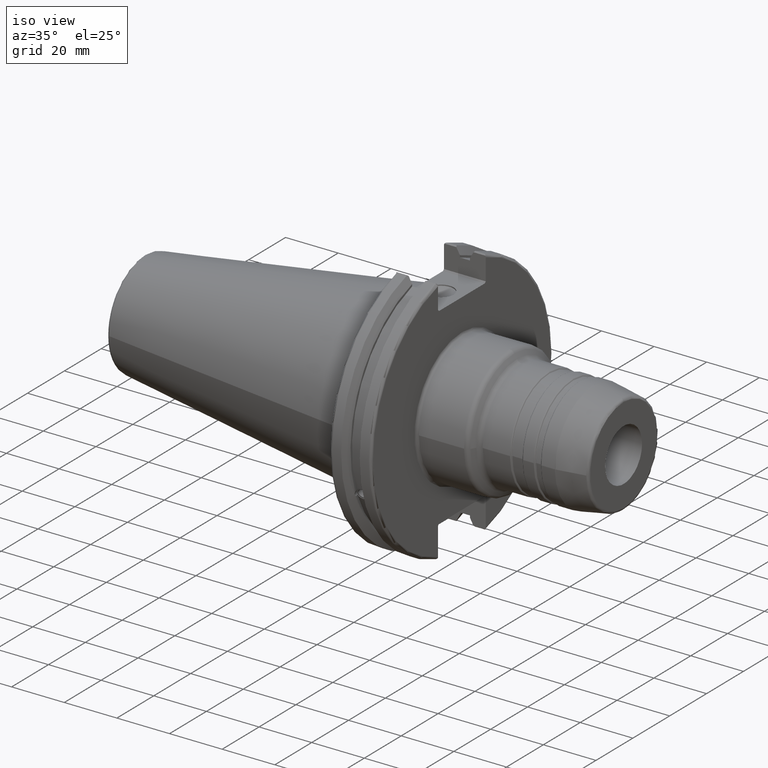
[diagram: clean part render]
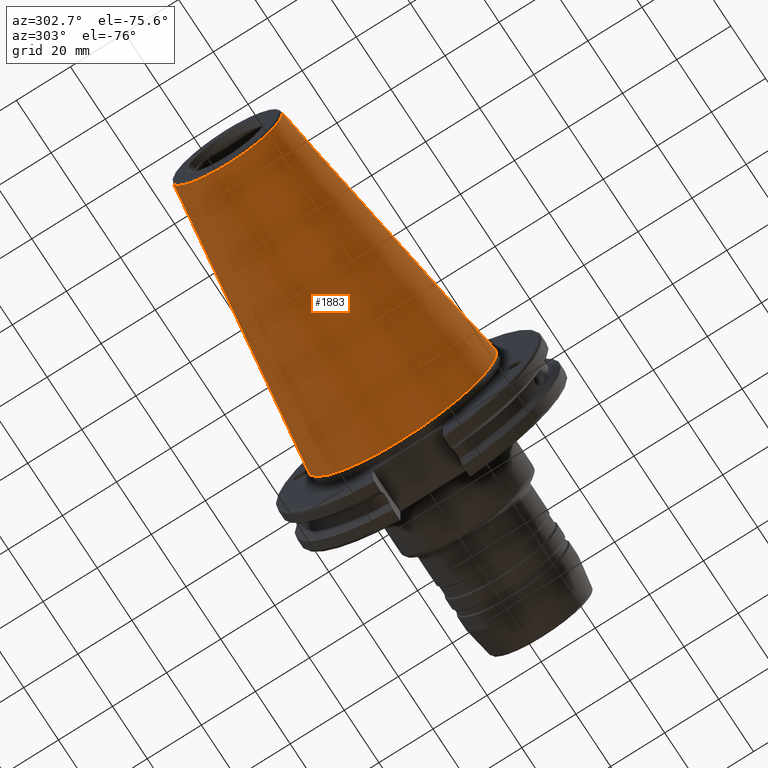
[diagram: tour spotlight — one face highlighted and labeled with its STEP entity id]
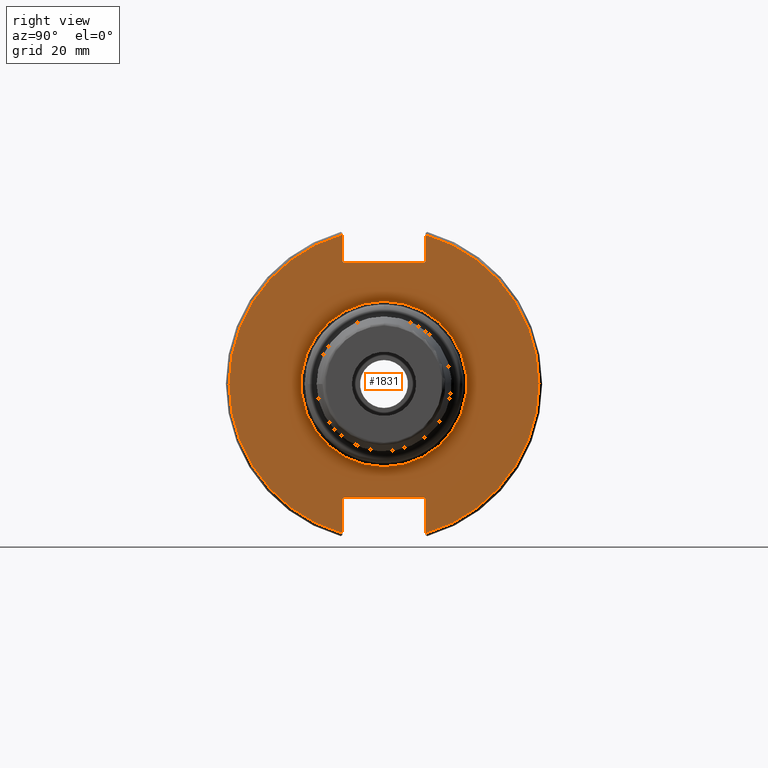
[diagram: tour spotlight — one face highlighted and labeled with its STEP entity id]
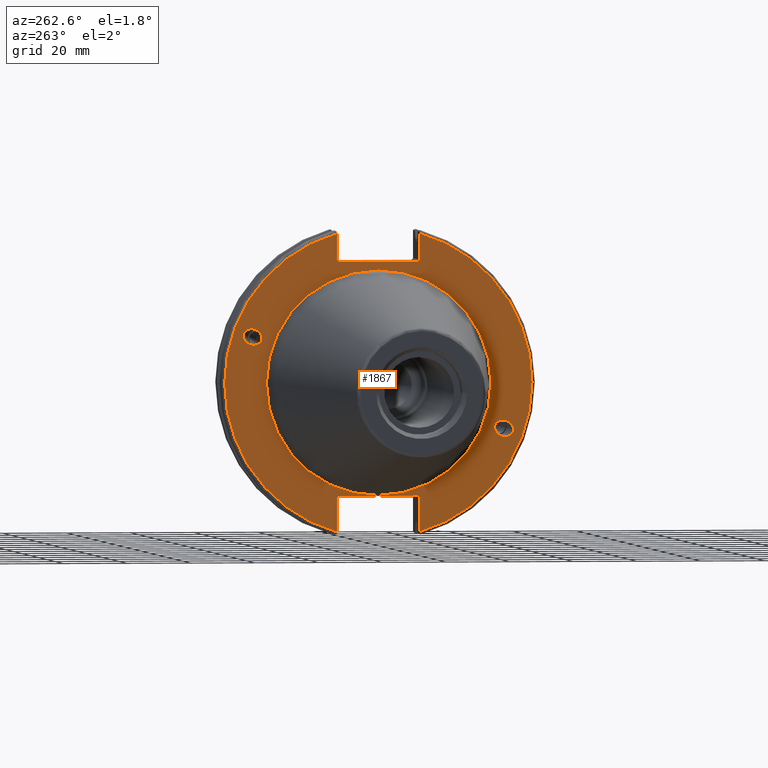
[diagram: tour spotlight — one face highlighted and labeled with its STEP entity id]
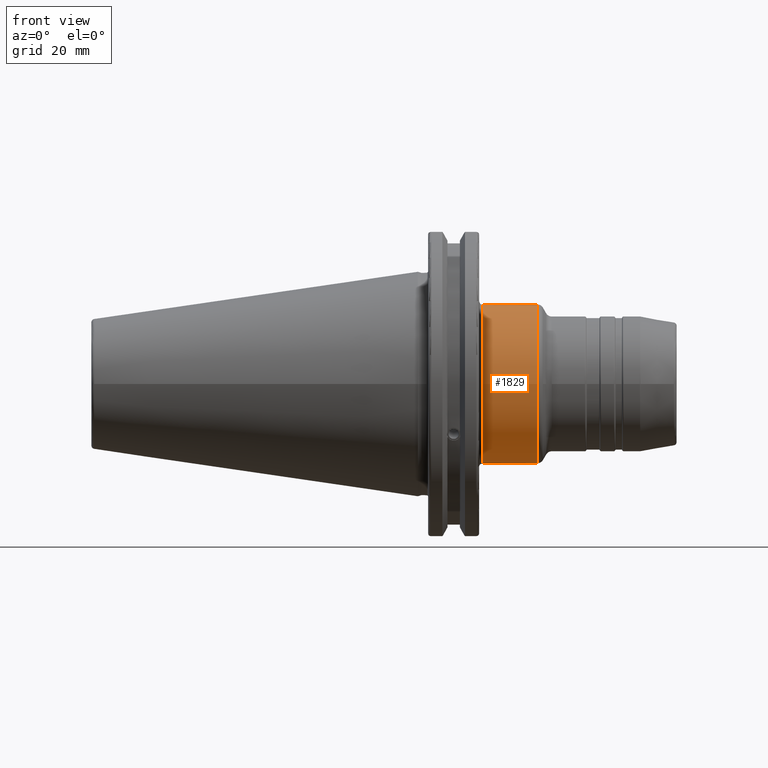
[diagram: tour spotlight — one face highlighted and labeled with its STEP entity id]
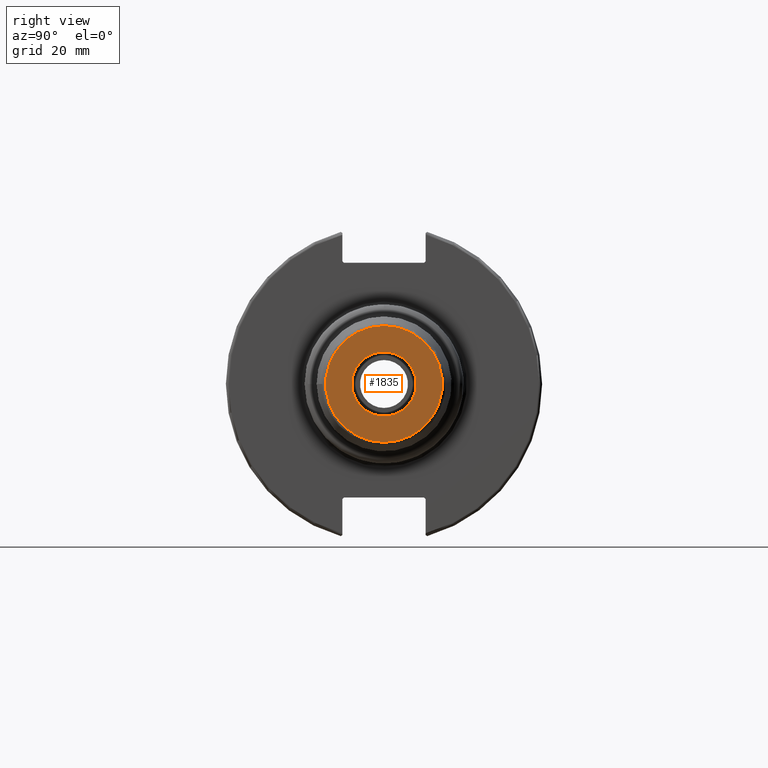
[diagram: tour spotlight — one face highlighted and labeled with its STEP entity id]
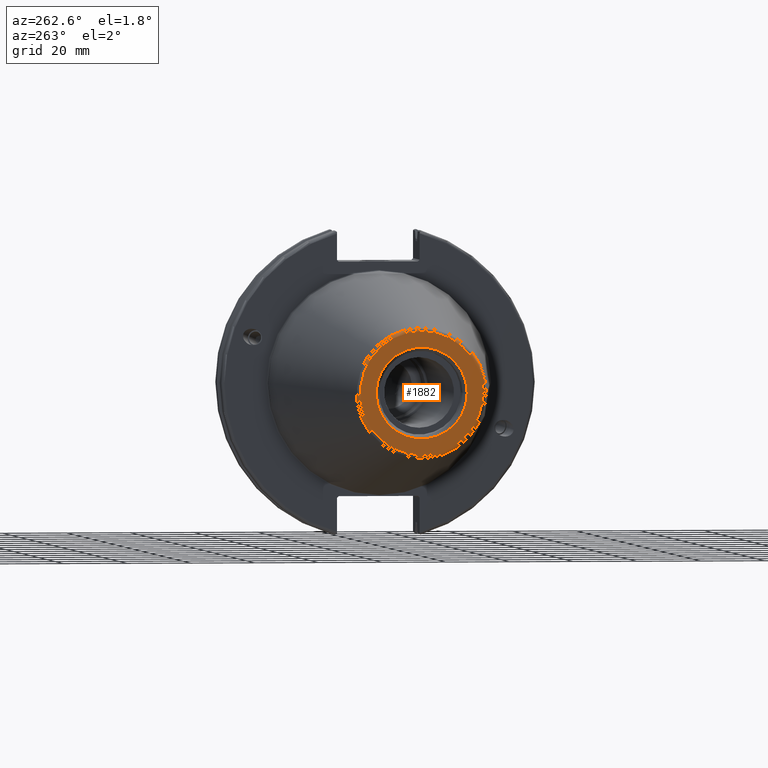
[diagram: tour spotlight — one face highlighted and labeled with its STEP entity id]
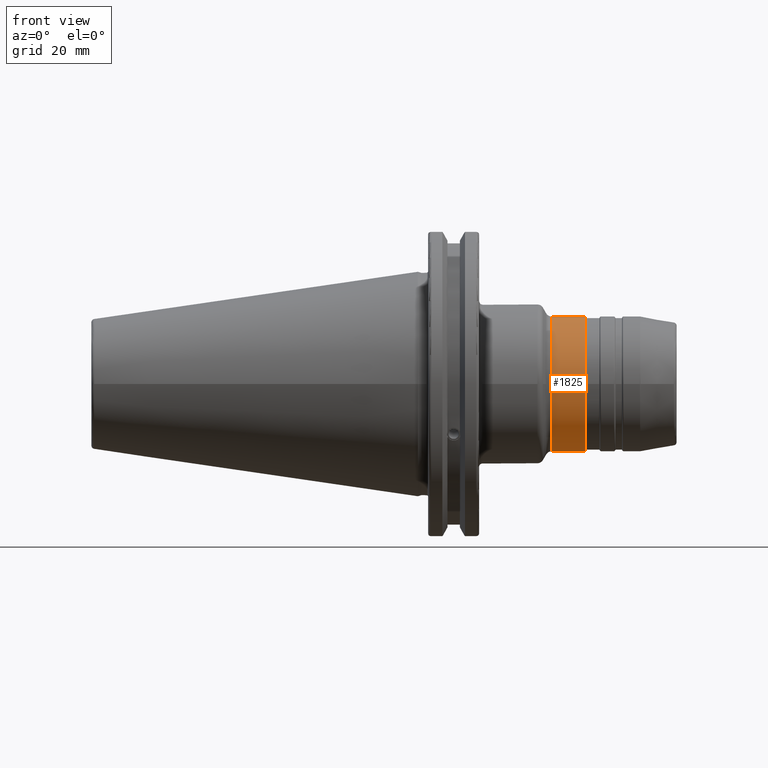
[diagram: tour spotlight — one face highlighted and labeled with its STEP entity id]
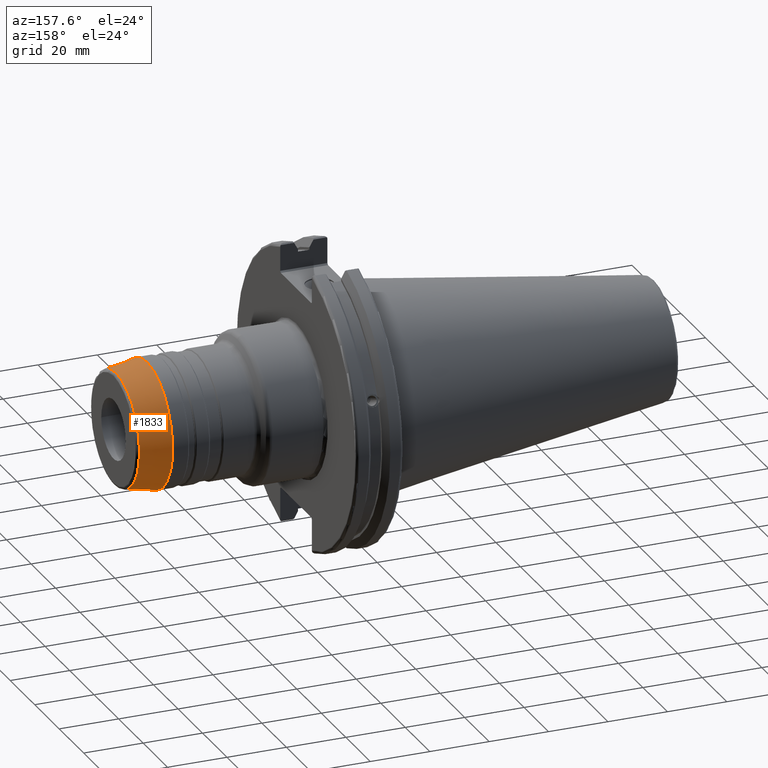
[diagram: tour spotlight — one face highlighted and labeled with its STEP entity id]
A machine part: a face-by-face anatomy tour. The part has 106 B-rep faces; the first image is the clean iso view, then the 8 largest visible faces are spotlighted one at a time (largest first), each with its STEP entity span.

Face 1 — auxiliary view, entity #1883. In plain terms, the highlighted conical surface has half-angle 8.297 deg.
Definition (entity closure, byte-faithful):
#101=CONICAL_SURFACE('',#2129,27.5166666666666,0.14481249823894);
#242=FACE_OUTER_BOUND('',#366,.T.);
#366=EDGE_LOOP('',(#1643,#1644,#1645,#1646,#1647));
#482=LINE('',#3730,#584);
#584=VECTOR('',#2649,27.5166666666666);
#711=CIRCLE('',#2123,20.233121911427);
#712=CIRCLE('',#2124,20.233121911427);
#716=CIRCLE('',#2130,34.925);
#907=VERTEX_POINT('',#3717);
#908=VERTEX_POINT('',#3718);
#911=VERTEX_POINT('',#3728);
#1168=EDGE_CURVE('',#907,#908,#711,.T.);
#1169=EDGE_CURVE('',#908,#907,#712,.T.);
#1173=EDGE_CURVE('',#911,#911,#716,.T.);
#1174=EDGE_CURVE('',#911,#908,#482,.T.);
#1643=ORIENTED_EDGE('',*,*,#1173,.F.);
#1644=ORIENTED_EDGE('',*,*,#1174,.T.);
#1645=ORIENTED_EDGE('',*,*,#1168,.F.);
#1646=ORIENTED_EDGE('',*,*,#1169,.F.);
#1647=ORIENTED_EDGE('',*,*,#1174,.F.);
#1883=ADVANCED_FACE('',(#242),#101,.T.);
#2123=AXIS2_PLACEMENT_3D('',#3719,#2633,#2634);
#2124=AXIS2_PLACEMENT_3D('',#3720,#2635,#2636);
#2129=AXIS2_PLACEMENT_3D('',#3727,#2645,#2646);
#2130=AXIS2_PLACEMENT_3D('',#3729,#2647,#2648);
#2633=DIRECTION('center_axis',(-1.,0.,0.));
#2634=DIRECTION('ref_axis',(0.,-1.,3.06161699786838E-17));
#2635=DIRECTION('center_axis',(-1.,0.,0.));
#2636=DIRECTION('ref_axis',(0.,-1.,3.06161699786838E-17));
#2645=DIRECTION('center_axis',(1.,0.,0.));
#2646=DIRECTION('ref_axis',(0.,1.,0.));
#2647=DIRECTION('center_axis',(1.,0.,0.));
#2648=DIRECTION('ref_axis',(0.,0.,-1.));
#2649=DIRECTION('',(-0.989532981063281,0.144306893071729,1.76724974695192E-17));
#3717=CARTESIAN_POINT('',(-100.744306893072,-2.47784279855872E-15,20.233121911427));
#3718=CARTESIAN_POINT('',(-100.744306893072,-20.233121911427,-2.47784279855872E-15));
#3719=CARTESIAN_POINT('Origin',(-100.744306893072,0.,-3.09730349819841E-15));
#3720=CARTESIAN_POINT('Origin',(-100.744306893072,0.,-3.09730349819841E-15));
#3727=CARTESIAN_POINT('Origin',(-50.8,0.,0.));
#3728=CARTESIAN_POINT('',(-8.88178419700125E-15,-34.925,-4.27707894602213E-15));
#3729=CARTESIAN_POINT('Origin',(0.,0.,0.));
#3730=CARTESIAN_POINT('',(-50.8,-27.5166666666666,-3.3698197756538E-15));

Face 2 — right view, entity #1831. In plain terms, the highlighted planar face has unit normal (1, 0, 0).
Definition (entity closure, byte-faithful):
#33=PLANE('',#2021);
#109=FACE_BOUND('',#299,.T.);
#190=FACE_OUTER_BOUND('',#298,.T.);
#298=EDGE_LOOP('',(#1353,#1354,#1355,#1356,#1357,#1358,#1359,#1360,#1361,
#1362,#1363,#1364));
#299=EDGE_LOOP('',(#1365));
#411=LINE('',#2976,#513);
#412=LINE('',#2978,#514);
#413=LINE('',#2980,#515);
#414=LINE('',#2982,#516);
#415=LINE('',#2984,#517);
#416=LINE('',#2988,#518);
#417=LINE('',#2990,#519);
#418=LINE('',#2992,#520);
#419=LINE('',#2994,#521);
#420=LINE('',#2995,#522);
#513=VECTOR('',#2362,10.);
#514=VECTOR('',#2363,10.);
#515=VECTOR('',#2364,10.);
#516=VECTOR('',#2365,10.);
#517=VECTOR('',#2366,10.);
#518=VECTOR('',#2369,10.);
#519=VECTOR('',#2370,10.);
#520=VECTOR('',#2371,10.);
#521=VECTOR('',#2372,10.);
#522=VECTOR('',#2373,10.);
#661=CIRCLE('',#2020,25.75);
#662=CIRCLE('',#2022,48.2125);
#663=CIRCLE('',#2023,48.2125);
#781=VERTEX_POINT('',#2968);
#782=VERTEX_POINT('',#2972);
#783=VERTEX_POINT('',#2973);
#784=VERTEX_POINT('',#2975);
#785=VERTEX_POINT('',#2977);
#786=VERTEX_POINT('',#2979);
#787=VERTEX_POINT('',#2981);
#788=VERTEX_POINT('',#2983);
#789=VERTEX_POINT('',#2985);
#790=VERTEX_POINT('',#2987);
#791=VERTEX_POINT('',#2989);
#792=VERTEX_POINT('',#2991);
#793=VERTEX_POINT('',#2993);
#997=EDGE_CURVE('',#781,#781,#661,.T.);
#998=EDGE_CURVE('',#782,#783,#662,.T.);
#999=EDGE_CURVE('',#782,#784,#411,.T.);
#1000=EDGE_CURVE('',#785,#784,#412,.T.);
#1001=EDGE_CURVE('',#785,#786,#413,.T.);
#1002=EDGE_CURVE('',#787,#786,#414,.T.);
#1003=EDGE_CURVE('',#787,#788,#415,.T.);
#1004=EDGE_CURVE('',#789,#788,#663,.T.);
#1005=EDGE_CURVE('',#789,#790,#416,.T.);
#1006=EDGE_CURVE('',#791,#790,#417,.T.);
#1007=EDGE_CURVE('',#791,#792,#418,.T.);
#1008=EDGE_CURVE('',#793,#792,#419,.T.);
#1009=EDGE_CURVE('',#793,#783,#420,.T.);
#1353=ORIENTED_EDGE('',*,*,#998,.F.);
#1354=ORIENTED_EDGE('',*,*,#999,.T.);
#1355=ORIENTED_EDGE('',*,*,#1000,.F.);
#1356=ORIENTED_EDGE('',*,*,#1001,.T.);
#1357=ORIENTED_EDGE('',*,*,#1002,.F.);
#1358=ORIENTED_EDGE('',*,*,#1003,.T.);
#1359=ORIENTED_EDGE('',*,*,#1004,.F.);
#1360=ORIENTED_EDGE('',*,*,#1005,.T.);
#1361=ORIENTED_EDGE('',*,*,#1006,.F.);
#1362=ORIENTED_EDGE('',*,*,#1007,.T.);
#1363=ORIENTED_EDGE('',*,*,#1008,.F.);
#1364=ORIENTED_EDGE('',*,*,#1009,.T.);
#1365=ORIENTED_EDGE('',*,*,#997,.F.);
#1831=ADVANCED_FACE('',(#190,#109),#33,.T.);
#2020=AXIS2_PLACEMENT_3D('',#2970,#2356,#2357);
#2021=AXIS2_PLACEMENT_3D('',#2971,#2358,#2359);
#2022=AXIS2_PLACEMENT_3D('',#2974,#2360,#2361);
#2023=AXIS2_PLACEMENT_3D('',#2986,#2367,#2368);
#2356=DIRECTION('center_axis',(1.,0.,0.));
#2357=DIRECTION('ref_axis',(0.,-1.,-1.22464679914735E-16));
#2358=DIRECTION('center_axis',(1.,0.,0.));
#2359=DIRECTION('ref_axis',(0.,0.,-1.));
#2360=DIRECTION('center_axis',(-1.,0.,0.));
#2361=DIRECTION('ref_axis',(0.,1.,-6.12323399573677E-17));
#2362=DIRECTION('',(0.,0.,-1.));
#2363=DIRECTION('',(0.,0.707106781186549,0.707106781186546));
#2364=DIRECTION('',(0.,-1.,0.));
#2365=DIRECTION('',(0.,0.707106781186549,-0.707106781186546));
#2366=DIRECTION('',(0.,0.,1.));
#2367=DIRECTION('center_axis',(-1.,0.,0.));
#2368=DIRECTION('ref_axis',(0.,-1.,1.60812264967664E-16));
#2369=DIRECTION('',(0.,0.,1.));
#2370=DIRECTION('',(0.,-0.707106781186549,-0.707106781186546));
#2371=DIRECTION('',(0.,1.,0.));
#2372=DIRECTION('',(0.,-0.707106781186549,0.707106781186546));
#2373=DIRECTION('',(0.,0.,-1.));
#2968=CARTESIAN_POINT('',(19.05,-3.15346550780443E-15,-25.75));
#2970=CARTESIAN_POINT('Origin',(19.05,0.,0.));
#2971=CARTESIAN_POINT('Origin',(19.05,0.,0.));
#2972=CARTESIAN_POINT('',(19.05,12.95,46.4407434937254));
#2973=CARTESIAN_POINT('',(19.05,12.95,-46.4407434937254));
#2974=CARTESIAN_POINT('Origin',(19.05,0.,0.));
#2975=CARTESIAN_POINT('',(19.05,12.95,38.219));
#2976=CARTESIAN_POINT('',(19.05,12.95,18.8595));
#2977=CARTESIAN_POINT('',(19.05,12.45,37.719));
#2978=CARTESIAN_POINT('',(19.05,0.0327499999999836,25.30175));
#2979=CARTESIAN_POINT('',(19.05,-12.45,37.719));
#2980=CARTESIAN_POINT('',(19.05,0.,37.719));
#2981=CARTESIAN_POINT('',(19.05,-12.95,38.219));
#2982=CARTESIAN_POINT('',(19.05,-0.0327499999999817,25.30175));
#2983=CARTESIAN_POINT('',(19.05,-12.95,46.4407434937254));
#2984=CARTESIAN_POINT('',(19.05,-12.95,18.8595));
#2985=CARTESIAN_POINT('',(19.05,-12.95,-46.4407434937254));
#2986=CARTESIAN_POINT('Origin',(19.05,0.,0.));
#2987=CARTESIAN_POINT('',(19.05,-12.95,-35.806));
#2988=CARTESIAN_POINT('',(19.05,-12.95,-17.653));
#2989=CARTESIAN_POINT('',(19.05,-12.45,-35.306));
#2990=CARTESIAN_POINT('',(19.05,-0.635999999999989,-23.492));
#2991=CARTESIAN_POINT('',(19.05,12.45,-35.306));
#2992=CARTESIAN_POINT('',(19.05,-3.33066907387547E-15,-35.306));
#2993=CARTESIAN_POINT('',(19.05,12.95,-35.806));
#2994=CARTESIAN_POINT('',(19.05,0.635999999999982,-23.492));
#2995=CARTESIAN_POINT('',(19.05,12.95,-17.653));

Face 3 — auxiliary view, entity #1867. In plain terms, the highlighted planar face has unit normal (-1, 0, 0).
Definition (entity closure, byte-faithful):
#31=ELLIPSE('',#2056,3.05193647190364,2.5);
#32=ELLIPSE('',#2090,3.05193647190364,2.5);
#45=PLANE('',#2100);
#121=FACE_BOUND('',#347,.T.);
#122=FACE_BOUND('',#348,.T.);
#123=FACE_BOUND('',#349,.T.);
#226=FACE_OUTER_BOUND('',#346,.T.);
#346=EDGE_LOOP('',(#1536,#1537,#1538,#1539,#1540,#1541,#1542,#1543,#1544,
#1545,#1546,#1547));
#347=EDGE_LOOP('',(#1548));
#348=EDGE_LOOP('',(#1549));
#349=EDGE_LOOP('',(#1550));
#452=LINE('',#3498,#554);
#453=LINE('',#3500,#555);
#454=LINE('',#3502,#556);
#455=LINE('',#3504,#557);
#456=LINE('',#3506,#558);
#457=LINE('',#3510,#559);
#458=LINE('',#3512,#560);
#459=LINE('',#3514,#561);
#460=LINE('',#3516,#562);
#461=LINE('',#3517,#563);
#554=VECTOR('',#2561,10.);
#555=VECTOR('',#2562,10.);
#556=VECTOR('',#2563,10.);
#557=VECTOR('',#2564,10.);
#558=VECTOR('',#2565,10.);
#559=VECTOR('',#2568,10.);
#560=VECTOR('',#2569,10.);
#561=VECTOR('',#2570,10.);
#562=VECTOR('',#2571,10.);
#563=VECTOR('',#2572,10.);
#701=CIRCLE('',#2098,35.125);
#703=CIRCLE('',#2101,48.2125);
#704=CIRCLE('',#2102,48.2125);
#822=VERTEX_POINT('',#3215);
#860=VERTEX_POINT('',#3474);
#865=VERTEX_POINT('',#3489);
#866=VERTEX_POINT('',#3494);
#867=VERTEX_POINT('',#3495);
#868=VERTEX_POINT('',#3497);
#869=VERTEX_POINT('',#3499);
#870=VERTEX_POINT('',#3501);
#871=VERTEX_POINT('',#3503);
#872=VERTEX_POINT('',#3505);
#873=VERTEX_POINT('',#3507);
#874=VERTEX_POINT('',#3509);
#875=VERTEX_POINT('',#3511);
#876=VERTEX_POINT('',#3513);
#877=VERTEX_POINT('',#3515);
#1048=EDGE_CURVE('',#822,#822,#31,.T.);
#1099=EDGE_CURVE('',#860,#860,#32,.T.);
#1106=EDGE_CURVE('',#865,#865,#701,.T.);
#1108=EDGE_CURVE('',#866,#867,#703,.T.);
#1109=EDGE_CURVE('',#866,#868,#452,.T.);
#1110=EDGE_CURVE('',#869,#868,#453,.T.);
#1111=EDGE_CURVE('',#869,#870,#454,.T.);
#1112=EDGE_CURVE('',#871,#870,#455,.T.);
#1113=EDGE_CURVE('',#871,#872,#456,.T.);
#1114=EDGE_CURVE('',#873,#872,#704,.T.);
#1115=EDGE_CURVE('',#873,#874,#457,.T.);
#1116=EDGE_CURVE('',#875,#874,#458,.T.);
#1117=EDGE_CURVE('',#875,#876,#459,.T.);
#1118=EDGE_CURVE('',#877,#876,#460,.T.);
#1119=EDGE_CURVE('',#877,#867,#461,.T.);
#1536=ORIENTED_EDGE('',*,*,#1108,.F.);
#1537=ORIENTED_EDGE('',*,*,#1109,.T.);
#1538=ORIENTED_EDGE('',*,*,#1110,.F.);
#1539=ORIENTED_EDGE('',*,*,#1111,.T.);
#1540=ORIENTED_EDGE('',*,*,#1112,.F.);
#1541=ORIENTED_EDGE('',*,*,#1113,.T.);
#1542=ORIENTED_EDGE('',*,*,#1114,.F.);
#1543=ORIENTED_EDGE('',*,*,#1115,.T.);
#1544=ORIENTED_EDGE('',*,*,#1116,.F.);
#1545=ORIENTED_EDGE('',*,*,#1117,.T.);
#1546=ORIENTED_EDGE('',*,*,#1118,.F.);
#1547=ORIENTED_EDGE('',*,*,#1119,.T.);
#1548=ORIENTED_EDGE('',*,*,#1048,.T.);
#1549=ORIENTED_EDGE('',*,*,#1099,.T.);
#1550=ORIENTED_EDGE('',*,*,#1106,.F.);
#1867=ADVANCED_FACE('',(#226,#121,#122,#123),#45,.T.);
#2056=AXIS2_PLACEMENT_3D('',#3217,#2451,#2452);
#2090=AXIS2_PLACEMENT_3D('',#3476,#2535,#2536);
#2098=AXIS2_PLACEMENT_3D('',#3491,#2553,#2554);
#2100=AXIS2_PLACEMENT_3D('',#3493,#2557,#2558);
#2101=AXIS2_PLACEMENT_3D('',#3496,#2559,#2560);
#2102=AXIS2_PLACEMENT_3D('',#3508,#2566,#2567);
#2451=DIRECTION('center_axis',(1.,0.,0.));
#2452=DIRECTION('ref_axis',(0.,-0.939692620785908,-0.342020143325668));
#2535=DIRECTION('center_axis',(1.,0.,0.));
#2536=DIRECTION('ref_axis',(0.,0.939692620785908,0.342020143325669));
#2553=DIRECTION('center_axis',(-1.,0.,0.));
#2554=DIRECTION('ref_axis',(0.,-1.,1.83697019872103E-16));
#2557=DIRECTION('center_axis',(-1.,0.,0.));
#2558=DIRECTION('ref_axis',(0.,0.,1.));
#2559=DIRECTION('center_axis',(1.,0.,0.));
#2560=DIRECTION('ref_axis',(0.,-1.,1.60812264967664E-16));
#2561=DIRECTION('',(0.,0.,-1.));
#2562=DIRECTION('',(0.,-0.707106781186549,0.707106781186546));
#2563=DIRECTION('',(0.,1.,0.));
#2564=DIRECTION('',(0.,-0.707106781186549,-0.707106781186546));
#2565=DIRECTION('',(0.,0.,1.));
#2566=DIRECTION('center_axis',(1.,0.,0.));
#2567=DIRECTION('ref_axis',(0.,1.,-6.12323399573677E-17));
#2568=DIRECTION('',(0.,0.,1.));
#2569=DIRECTION('',(0.,0.707106781186549,-0.707106781186546));
#2570=DIRECTION('',(0.,-1.,0.));
#2571=DIRECTION('',(0.,0.707106781186549,0.707106781186546));
#2572=DIRECTION('',(0.,0.,-1.));
#3215=CARTESIAN_POINT('',(3.175,-36.5992078912529,-13.3210222701368));
#3217=CARTESIAN_POINT('Origin',(3.175,-39.4670900730082,-14.3648460196781));
#3474=CARTESIAN_POINT('',(3.175,36.5992078912529,13.3210222701368));
#3476=CARTESIAN_POINT('Origin',(3.175,39.4670900730082,14.3648460196781));
#3489=CARTESIAN_POINT('',(3.175,-4.30157188200508E-15,35.125));
#3491=CARTESIAN_POINT('Origin',(3.175,0.,0.));
#3493=CARTESIAN_POINT('Origin',(3.175,49.2125,0.));
#3494=CARTESIAN_POINT('',(3.175,-12.95,46.4407434937254));
#3495=CARTESIAN_POINT('',(3.175,-12.95,-46.4407434937254));
#3496=CARTESIAN_POINT('Origin',(3.175,0.,0.));
#3497=CARTESIAN_POINT('',(3.175,-12.95,38.219));
#3498=CARTESIAN_POINT('',(3.175,-12.95,18.8595));
#3499=CARTESIAN_POINT('',(3.175,-12.45,37.719));
#3500=CARTESIAN_POINT('',(3.175,12.2703750000001,12.998625));
#3501=CARTESIAN_POINT('',(3.175,12.45,37.719));
#3502=CARTESIAN_POINT('',(3.175,24.60625,37.719));
#3503=CARTESIAN_POINT('',(3.175,12.95,38.219));
#3504=CARTESIAN_POINT('',(3.175,12.335875,37.604875));
#3505=CARTESIAN_POINT('',(3.175,12.95,46.4407434937254));
#3506=CARTESIAN_POINT('',(3.175,12.95,18.8595));
#3507=CARTESIAN_POINT('',(3.175,12.95,-46.4407434937254));
#3508=CARTESIAN_POINT('Origin',(3.175,0.,0.));
#3509=CARTESIAN_POINT('',(3.175,12.95,-35.806));
#3510=CARTESIAN_POINT('',(3.175,12.95,-17.653));
#3511=CARTESIAN_POINT('',(3.175,12.45,-35.306));
#3512=CARTESIAN_POINT('',(3.175,12.939125,-35.795125));
#3513=CARTESIAN_POINT('',(3.175,-12.45,-35.306));
#3514=CARTESIAN_POINT('',(3.175,24.60625,-35.306));
#3515=CARTESIAN_POINT('',(3.175,-12.95,-35.806));
#3516=CARTESIAN_POINT('',(3.175,11.6671250000001,-11.188875));
#3517=CARTESIAN_POINT('',(3.175,-12.95,-17.653));

Face 4 — front view, entity #1829. In plain terms, the highlighted cylindrical surface (bore or boss wall) has radius 24.75 mm, axis along (1, 0, 0).
Definition (entity closure, byte-faithful):
#188=FACE_OUTER_BOUND('',#296,.T.);
#296=EDGE_LOOP('',(#1342,#1343,#1344,#1345,#1346,#1347));
#410=LINE('',#2963,#512);
#512=VECTOR('',#2347,24.75);
#656=CIRCLE('',#2013,24.75);
#657=CIRCLE('',#2014,24.75);
#658=CIRCLE('',#2016,24.75);
#659=CIRCLE('',#2017,24.75);
#777=VERTEX_POINT('',#2956);
#778=VERTEX_POINT('',#2958);
#779=VERTEX_POINT('',#2962);
#780=VERTEX_POINT('',#2964);
#991=EDGE_CURVE('',#777,#778,#656,.T.);
#992=EDGE_CURVE('',#778,#777,#657,.T.);
#993=EDGE_CURVE('',#778,#779,#410,.T.);
#994=EDGE_CURVE('',#780,#779,#658,.T.);
#995=EDGE_CURVE('',#779,#780,#659,.T.);
#1342=ORIENTED_EDGE('',*,*,#992,.F.);
#1343=ORIENTED_EDGE('',*,*,#993,.T.);
#1344=ORIENTED_EDGE('',*,*,#994,.F.);
#1345=ORIENTED_EDGE('',*,*,#995,.F.);
#1346=ORIENTED_EDGE('',*,*,#993,.F.);
#1347=ORIENTED_EDGE('',*,*,#991,.F.);
#1781=CYLINDRICAL_SURFACE('',#2015,24.75);
#1829=ADVANCED_FACE('',(#188),#1781,.T.);
#2013=AXIS2_PLACEMENT_3D('',#2959,#2341,#2342);
#2014=AXIS2_PLACEMENT_3D('',#2960,#2343,#2344);
#2015=AXIS2_PLACEMENT_3D('',#2961,#2345,#2346);
#2016=AXIS2_PLACEMENT_3D('',#2965,#2348,#2349);
#2017=AXIS2_PLACEMENT_3D('',#2966,#2350,#2351);
#2341=DIRECTION('center_axis',(1.,0.,0.));
#2342=DIRECTION('ref_axis',(0.,-1.,1.83697019872103E-16));
#2343=DIRECTION('center_axis',(1.,0.,0.));
#2344=DIRECTION('ref_axis',(0.,-1.,1.83697019872103E-16));
#2345=DIRECTION('center_axis',(1.,0.,0.));
#2346=DIRECTION('ref_axis',(0.,1.,0.));
#2347=DIRECTION('',(-1.,0.,0.));
#2348=DIRECTION('center_axis',(-1.,0.,0.));
#2349=DIRECTION('ref_axis',(0.,-1.,-1.22464679914735E-16));
#2350=DIRECTION('center_axis',(-1.,0.,0.));
#2351=DIRECTION('ref_axis',(0.,-1.,-1.22464679914735E-16));
#2956=CARTESIAN_POINT('',(37.1802359521597,-3.0310008278897E-15,24.75));
#2958=CARTESIAN_POINT('',(37.1802359521597,-24.75,-3.0310008278897E-15));
#2959=CARTESIAN_POINT('Origin',(37.1802359521597,0.,0.));
#2960=CARTESIAN_POINT('Origin',(37.1802359521597,0.,0.));
#2961=CARTESIAN_POINT('Origin',(28.6924682452695,0.,0.));
#2962=CARTESIAN_POINT('',(20.05,-24.75,-3.0310008278897E-15));
#2963=CARTESIAN_POINT('',(28.6924682452695,-24.75,-3.0310008278897E-15));
#2964=CARTESIAN_POINT('',(20.05,-3.0310008278897E-15,-24.75));
#2965=CARTESIAN_POINT('Origin',(20.05,0.,0.));
#2966=CARTESIAN_POINT('Origin',(20.05,0.,0.));

Face 5 — right view, entity #1835. In plain terms, the highlighted planar face has unit normal (1, 0, 0).
Definition (entity closure, byte-faithful):
#34=PLANE('',#2034);
#110=FACE_BOUND('',#304,.T.);
#194=FACE_OUTER_BOUND('',#303,.T.);
#303=EDGE_LOOP('',(#1383));
#304=EDGE_LOOP('',(#1384));
#669=CIRCLE('',#2032,18.1609003688227);
#671=CIRCLE('',#2035,9.99999999999999);
#798=VERTEX_POINT('',#3009);
#799=VERTEX_POINT('',#3013);
#1016=EDGE_CURVE('',#798,#798,#669,.T.);
#1018=EDGE_CURVE('',#799,#799,#671,.T.);
#1383=ORIENTED_EDGE('',*,*,#1016,.F.);
#1384=ORIENTED_EDGE('',*,*,#1018,.F.);
#1835=ADVANCED_FACE('',(#194,#110),#34,.T.);
#2032=AXIS2_PLACEMENT_3D('',#3010,#2391,#2392);
#2034=AXIS2_PLACEMENT_3D('',#3012,#2395,#2396);
#2035=AXIS2_PLACEMENT_3D('',#3014,#2397,#2398);
#2391=DIRECTION('center_axis',(-1.,0.,0.));
#2392=DIRECTION('ref_axis',(0.,-1.,1.83697019872103E-16));
#2395=DIRECTION('center_axis',(1.,0.,0.));
#2396=DIRECTION('ref_axis',(0.,0.,-1.));
#2397=DIRECTION('center_axis',(1.,0.,0.));
#2398=DIRECTION('ref_axis',(0.,0.,-1.));
#3009=CARTESIAN_POINT('',(80.5,-2.22406885063127E-15,18.1609003688227));
#3010=CARTESIAN_POINT('Origin',(80.5,0.,0.));
#3012=CARTESIAN_POINT('Origin',(80.5,9.99999999999999,0.));
#3013=CARTESIAN_POINT('',(80.5,-9.99999999999998,-1.22464679914735E-15));
#3014=CARTESIAN_POINT('Origin',(80.5,0.,0.));

Face 6 — auxiliary view, entity #1882. In plain terms, the highlighted planar face has unit normal (-1, 0, 0).
Definition (entity closure, byte-faithful):
#53=PLANE('',#2127);
#124=FACE_BOUND('',#365,.T.);
#241=FACE_OUTER_BOUND('',#364,.T.);
#364=EDGE_LOOP('',(#1641));
#365=EDGE_LOOP('',(#1642));
#714=CIRCLE('',#2126,19.2435889303637);
#715=CIRCLE('',#2128,14.2875);
#909=VERTEX_POINT('',#3721);
#910=VERTEX_POINT('',#3725);
#1171=EDGE_CURVE('',#909,#909,#714,.T.);
#1172=EDGE_CURVE('',#910,#910,#715,.T.);
#1641=ORIENTED_EDGE('',*,*,#1171,.F.);
#1642=ORIENTED_EDGE('',*,*,#1172,.T.);
#1882=ADVANCED_FACE('',(#241,#124),#53,.T.);
#2126=AXIS2_PLACEMENT_3D('',#3723,#2639,#2640);
#2127=AXIS2_PLACEMENT_3D('',#3724,#2641,#2642);
#2128=AXIS2_PLACEMENT_3D('',#3726,#2643,#2644);
#2639=DIRECTION('center_axis',(1.,0.,0.));
#2640=DIRECTION('ref_axis',(0.,-1.,1.83697019872103E-16));
#2641=DIRECTION('center_axis',(-1.,0.,0.));
#2642=DIRECTION('ref_axis',(0.,0.,1.));
#2643=DIRECTION('center_axis',(1.,0.,0.));
#2644=DIRECTION('ref_axis',(0.,0.,-1.));
#3721=CARTESIAN_POINT('',(-101.6,-2.35665995876774E-15,19.2435889303637));
#3723=CARTESIAN_POINT('Origin',(-101.6,0.,0.));
#3724=CARTESIAN_POINT('Origin',(-101.6,20.1083333333333,0.));
#3725=CARTESIAN_POINT('',(-101.6,-14.2875,-1.74971411428178E-15));
#3726=CARTESIAN_POINT('Origin',(-101.6,0.,0.));

Face 7 — front view, entity #1825. In plain terms, the highlighted cylindrical surface (bore or boss wall) has radius 21 mm, axis along (1, 0, 0).
Definition (entity closure, byte-faithful):
#184=FACE_OUTER_BOUND('',#292,.T.);
#292=EDGE_LOOP('',(#1318,#1319,#1320,#1321,#1322,#1323));
#408=LINE('',#2939,#510);
#510=VECTOR('',#2317,21.);
#646=CIRCLE('',#1999,21.);
#647=CIRCLE('',#2000,21.);
#648=CIRCLE('',#2002,21.);
#649=CIRCLE('',#2003,21.);
#769=VERTEX_POINT('',#2932);
#770=VERTEX_POINT('',#2934);
#771=VERTEX_POINT('',#2938);
#772=VERTEX_POINT('',#2940);
#979=EDGE_CURVE('',#769,#770,#646,.T.);
#980=EDGE_CURVE('',#770,#769,#647,.T.);
#981=EDGE_CURVE('',#770,#771,#408,.T.);
#982=EDGE_CURVE('',#772,#771,#648,.T.);
#983=EDGE_CURVE('',#771,#772,#649,.T.);
#1318=ORIENTED_EDGE('',*,*,#980,.F.);
#1319=ORIENTED_EDGE('',*,*,#981,.T.);
#1320=ORIENTED_EDGE('',*,*,#982,.F.);
#1321=ORIENTED_EDGE('',*,*,#983,.F.);
#1322=ORIENTED_EDGE('',*,*,#981,.F.);
#1323=ORIENTED_EDGE('',*,*,#979,.F.);
#1780=CYLINDRICAL_SURFACE('',#2001,21.);
#1825=ADVANCED_FACE('',(#184),#1780,.T.);
#1999=AXIS2_PLACEMENT_3D('',#2935,#2311,#2312);
#2000=AXIS2_PLACEMENT_3D('',#2936,#2313,#2314);
#2001=AXIS2_PLACEMENT_3D('',#2937,#2315,#2316);
#2002=AXIS2_PLACEMENT_3D('',#2941,#2318,#2319);
#2003=AXIS2_PLACEMENT_3D('',#2942,#2320,#2321);
#2311=DIRECTION('center_axis',(1.,0.,0.));
#2312=DIRECTION('ref_axis',(0.,-1.,1.83697019872103E-16));
#2313=DIRECTION('center_axis',(1.,0.,0.));
#2314=DIRECTION('ref_axis',(0.,-1.,1.83697019872103E-16));
#2315=DIRECTION('center_axis',(1.,0.,0.));
#2316=DIRECTION('ref_axis',(0.,1.,0.));
#2317=DIRECTION('',(-1.,0.,0.));
#2318=DIRECTION('center_axis',(-1.,0.,0.));
#2319=DIRECTION('ref_axis',(0.,-1.,1.83697019872103E-16));
#2320=DIRECTION('center_axis',(-1.,0.,0.));
#2321=DIRECTION('ref_axis',(0.,-1.,1.83697019872103E-16));
#2932=CARTESIAN_POINT('',(51.9803847577293,-2.57175827820944E-15,21.));
#2934=CARTESIAN_POINT('',(51.9803847577293,-21.,-2.57175827820944E-15));
#2935=CARTESIAN_POINT('Origin',(51.9803847577293,0.,0.));
#2936=CARTESIAN_POINT('Origin',(51.9803847577293,0.,0.));
#2937=CARTESIAN_POINT('Origin',(46.3556624327026,0.,0.));
#2938=CARTESIAN_POINT('',(41.6547005383793,-21.,-2.57175827820944E-15));
#2939=CARTESIAN_POINT('',(46.3556624327026,-21.,-2.57175827820944E-15));
#2940=CARTESIAN_POINT('',(41.6547005383793,-2.57175827820944E-15,21.));
#2941=CARTESIAN_POINT('Origin',(41.6547005383793,0.,0.));
#2942=CARTESIAN_POINT('Origin',(41.6547005383793,0.,0.));

Face 8 — auxiliary view, entity #1833. In plain terms, the highlighted conical surface has half-angle 10 deg.
Definition (entity closure, byte-faithful):
#95=CONICAL_SURFACE('',#2028,20.,0.174532925199432);
#192=FACE_OUTER_BOUND('',#301,.T.);
#301=EDGE_LOOP('',(#1372,#1373,#1374,#1375,#1376,#1377));
#421=LINE('',#3006,#523);
#523=VECTOR('',#2386,20.);
#664=CIRCLE('',#2025,20.9848077530122);
#665=CIRCLE('',#2026,20.9848077530122);
#667=CIRCLE('',#2029,19.1457081218349);
#668=CIRCLE('',#2030,19.1457081218349);
#794=VERTEX_POINT('',#2997);
#795=VERTEX_POINT('',#2998);
#796=VERTEX_POINT('',#3003);
#797=VERTEX_POINT('',#3004);
#1010=EDGE_CURVE('',#794,#795,#664,.T.);
#1011=EDGE_CURVE('',#795,#794,#665,.T.);
#1013=EDGE_CURVE('',#796,#797,#667,.T.);
#1014=EDGE_CURVE('',#796,#795,#421,.T.);
#1015=EDGE_CURVE('',#797,#796,#668,.T.);
#1372=ORIENTED_EDGE('',*,*,#1013,.F.);
#1373=ORIENTED_EDGE('',*,*,#1014,.T.);
#1374=ORIENTED_EDGE('',*,*,#1010,.F.);
#1375=ORIENTED_EDGE('',*,*,#1011,.F.);
#1376=ORIENTED_EDGE('',*,*,#1014,.F.);
#1377=ORIENTED_EDGE('',*,*,#1015,.F.);
#1833=ADVANCED_FACE('',(#192),#95,.T.);
#2025=AXIS2_PLACEMENT_3D('',#2999,#2376,#2377);
#2026=AXIS2_PLACEMENT_3D('',#3000,#2378,#2379);
#2028=AXIS2_PLACEMENT_3D('',#3002,#2382,#2383);
#2029=AXIS2_PLACEMENT_3D('',#3005,#2384,#2385);
#2030=AXIS2_PLACEMENT_3D('',#3007,#2387,#2388);
#2376=DIRECTION('center_axis',(-1.,0.,0.));
#2377=DIRECTION('ref_axis',(0.,-1.,3.06161699786838E-17));
#2378=DIRECTION('center_axis',(-1.,0.,0.));
#2379=DIRECTION('ref_axis',(0.,-1.,3.06161699786838E-17));
#2382=DIRECTION('center_axis',(-1.,0.,0.));
#2383=DIRECTION('ref_axis',(0.,1.,0.));
#2384=DIRECTION('center_axis',(1.,0.,0.));
#2385=DIRECTION('ref_axis',(0.,-1.,3.06161699786838E-17));
#2386=DIRECTION('',(-0.984807753012208,-0.17364817766693,-2.12657684957577E-17));
#2387=DIRECTION('center_axis',(1.,0.,0.));
#2388=DIRECTION('ref_axis',(0.,-1.,3.06161699786838E-17));
#2997=CARTESIAN_POINT('',(69.2435958749056,-2.5698977645449E-15,20.9848077530122));
#2998=CARTESIAN_POINT('',(69.2435958749056,-20.9848077530122,-2.5698977645449E-15));
#2999=CARTESIAN_POINT('Origin',(69.2435958749056,0.,-3.21237220568112E-15));
#3000=CARTESIAN_POINT('Origin',(69.2435958749056,0.,-3.21237220568112E-15));
#3002=CARTESIAN_POINT('Origin',(74.8287181803823,0.,0.));
#3003=CARTESIAN_POINT('',(79.6736481776669,-19.1457081218349,-2.34467301688146E-15));
#3004=CARTESIAN_POINT('',(79.6736481776669,-2.34467301688146E-15,19.1457081218349));
#3005=CARTESIAN_POINT('Origin',(79.6736481776669,0.,-2.93084127110183E-15));
#3006=CARTESIAN_POINT('',(74.8287181803823,-20.,-2.44929359829471E-15));
#3007=CARTESIAN_POINT('Origin',(79.6736481776669,0.,-2.93084127110183E-15));